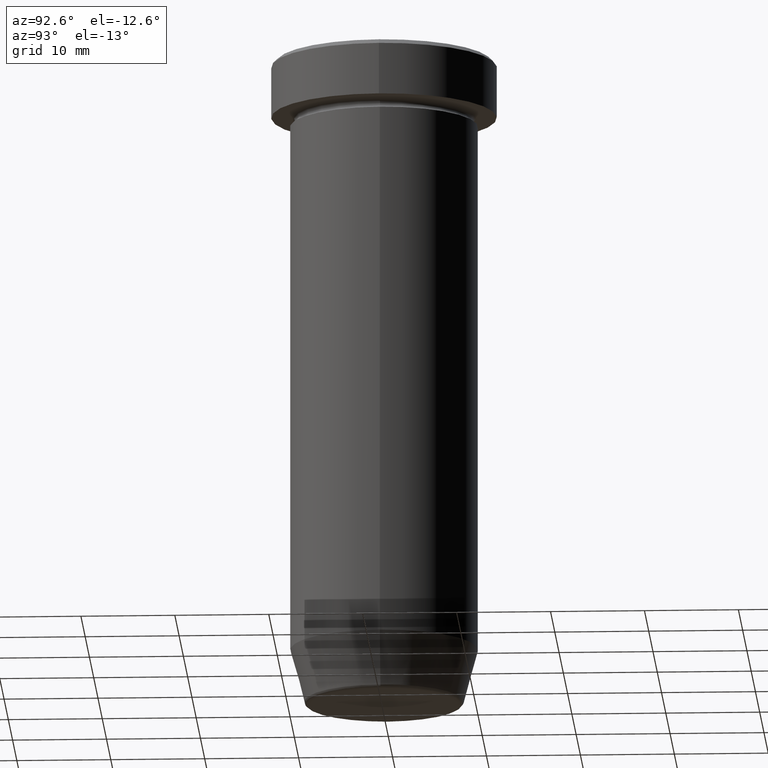
[diagram: clean part render]
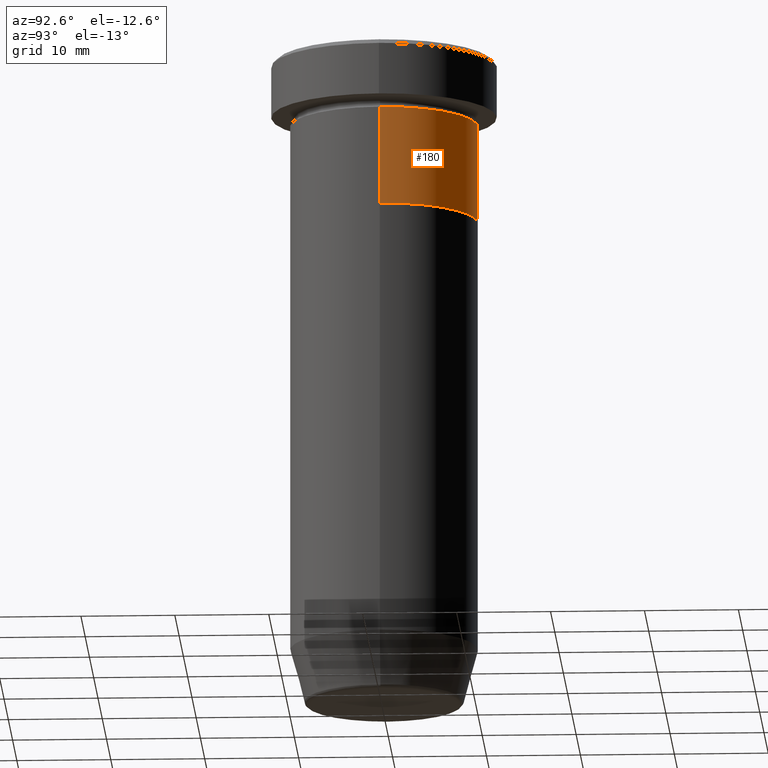
[diagram: same view with one face highlighted and labeled with its STEP entity id]
A machine part, auxiliary view. The second image highlights one B-rep face of the part: STEP entity #180.
In plain terms, the highlighted cylindrical surface (partial cylindrical patch) has radius 10 mm, axis along (-0, -0, 1).
Its self-contained STEP definition (entity closure, byte-faithful):
#20 = CARTESIAN_POINT ( 'NONE',  ( 0.000000000000000000, 0.000000000000000000, 0.000000000000000000 ) ) ;
#24 = VERTEX_POINT ( 'NONE', #272 ) ;
#52 = EDGE_CURVE ( 'NONE', #243, #515, #371, .T. ) ;
#73 = VERTEX_POINT ( 'NONE', #275 ) ;
#75 = ORIENTED_EDGE ( 'NONE', *, *, #263, .F. ) ;
#91 = DIRECTION ( 'NONE',  ( 1.000000000000000000, 0.000000000000000000, 0.000000000000000000 ) ) ;
#133 = AXIS2_PLACEMENT_3D ( 'NONE', #174, #518, #91 ) ;
#135 = CARTESIAN_POINT ( 'NONE',  ( 0.000000000000000000, 0.000000000000000000, -17.50000000000000000 ) ) ;
#147 = EDGE_CURVE ( 'NONE', #515, #73, #210, .T. ) ;
#156 = CYLINDRICAL_SURFACE ( 'NONE', #349, 10.00000000000000000 ) ;
#174 = CARTESIAN_POINT ( 'NONE',  ( 0.000000000000000000, 0.000000000000000000, -6.999999999999999112 ) ) ;
#178 = DIRECTION ( 'NONE',  ( -0.000000000000000000, -0.000000000000000000, 1.000000000000000000 ) ) ;
#180 = ADVANCED_FACE ( 'NONE', ( #506 ), #156, .T. ) ;
#201 = ORIENTED_EDGE ( 'NONE', *, *, #147, .T. ) ;
#207 = VECTOR ( 'NONE', #178, 1000.000000000000000 ) ;
#210 = LINE ( 'NONE', #599, #549 ) ;
#236 = DIRECTION ( 'NONE',  ( 1.000000000000000000, 0.000000000000000000, 0.000000000000000000 ) ) ;
#238 = AXIS2_PLACEMENT_3D ( 'NONE', #135, #286, #236 ) ;
#243 = VERTEX_POINT ( 'NONE', #458 ) ;
#258 = DIRECTION ( 'NONE',  ( 1.000000000000000000, 0.000000000000000000, 0.000000000000000000 ) ) ;
#263 = EDGE_CURVE ( 'NONE', #24, #73, #319, .T. ) ;
#271 = CARTESIAN_POINT ( 'NONE',  ( 10.00000000000000000, 0.000000000000000000, 0.000000000000000000 ) ) ;
#272 = CARTESIAN_POINT ( 'NONE',  ( 10.00000000000000000, 0.000000000000000000, -6.999999999999999112 ) ) ;
#275 = CARTESIAN_POINT ( 'NONE',  ( -10.00000000000000000, 1.224646799147353256E-15, -6.999999999999999112 ) ) ;
#286 = DIRECTION ( 'NONE',  ( -0.000000000000000000, -0.000000000000000000, 1.000000000000000000 ) ) ;
#307 = EDGE_CURVE ( 'NONE', #243, #24, #525, .T. ) ;
#319 = CIRCLE ( 'NONE', #133, 10.00000000000000000 ) ;
#349 = AXIS2_PLACEMENT_3D ( 'NONE', #20, #395, #258 ) ;
#371 = CIRCLE ( 'NONE', #238, 10.00000000000000000 ) ;
#387 = CARTESIAN_POINT ( 'NONE',  ( -10.00000000000000000, 1.224646799147353256E-15, -17.50000000000000000 ) ) ;
#395 = DIRECTION ( 'NONE',  ( -0.000000000000000000, -0.000000000000000000, 1.000000000000000000 ) ) ;
#397 = ORIENTED_EDGE ( 'NONE', *, *, #307, .F. ) ;
#458 = CARTESIAN_POINT ( 'NONE',  ( 10.00000000000000000, 0.000000000000000000, -17.50000000000000000 ) ) ;
#474 = ORIENTED_EDGE ( 'NONE', *, *, #52, .T. ) ;
#491 = EDGE_LOOP ( 'NONE', ( #474, #201, #75, #397 ) ) ;
#506 = FACE_OUTER_BOUND ( 'NONE', #491, .T. ) ;
#515 = VERTEX_POINT ( 'NONE', #387 ) ;
#518 = DIRECTION ( 'NONE',  ( -0.000000000000000000, -0.000000000000000000, 1.000000000000000000 ) ) ;
#525 = LINE ( 'NONE', #271, #207 ) ;
#549 = VECTOR ( 'NONE', #562, 1000.000000000000000 ) ;
#562 = DIRECTION ( 'NONE',  ( -0.000000000000000000, -0.000000000000000000, 1.000000000000000000 ) ) ;
#599 = CARTESIAN_POINT ( 'NONE',  ( -10.00000000000000000, 1.224646799147353256E-15, 0.000000000000000000 ) ) ;